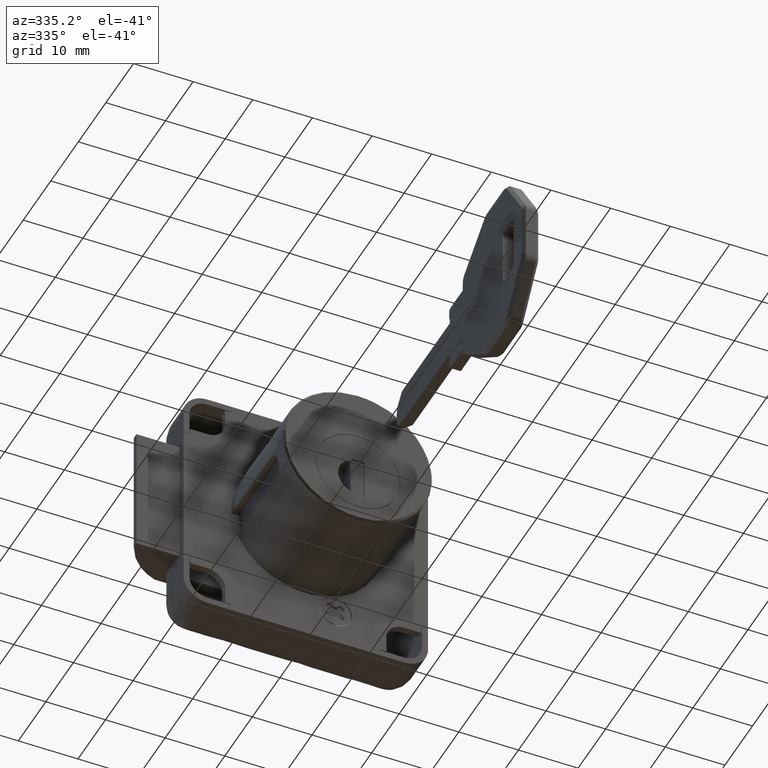
[diagram: clean part render]
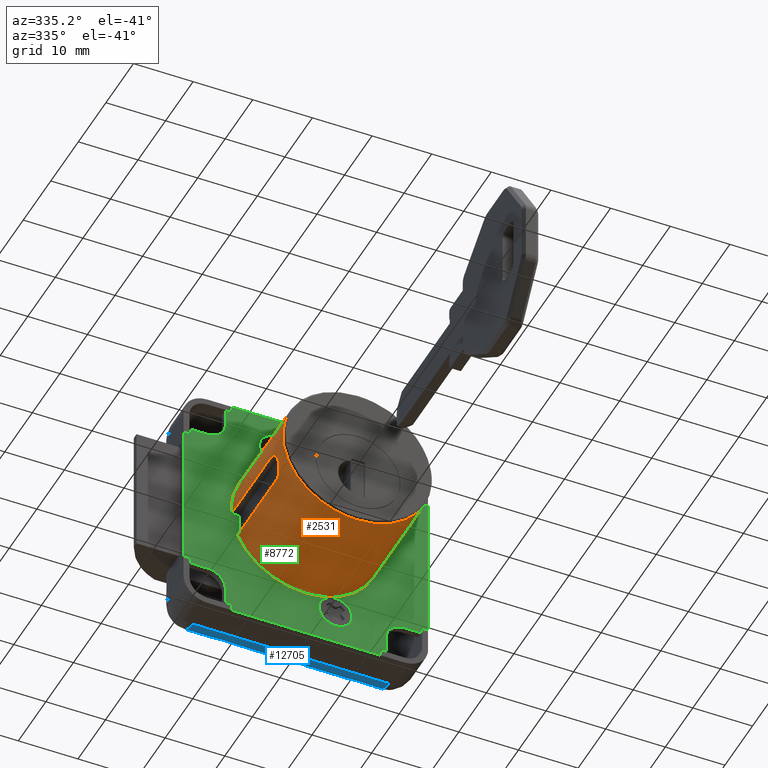
[diagram: same view with three faces highlighted in distinct colors, each labeled with its STEP entity id]
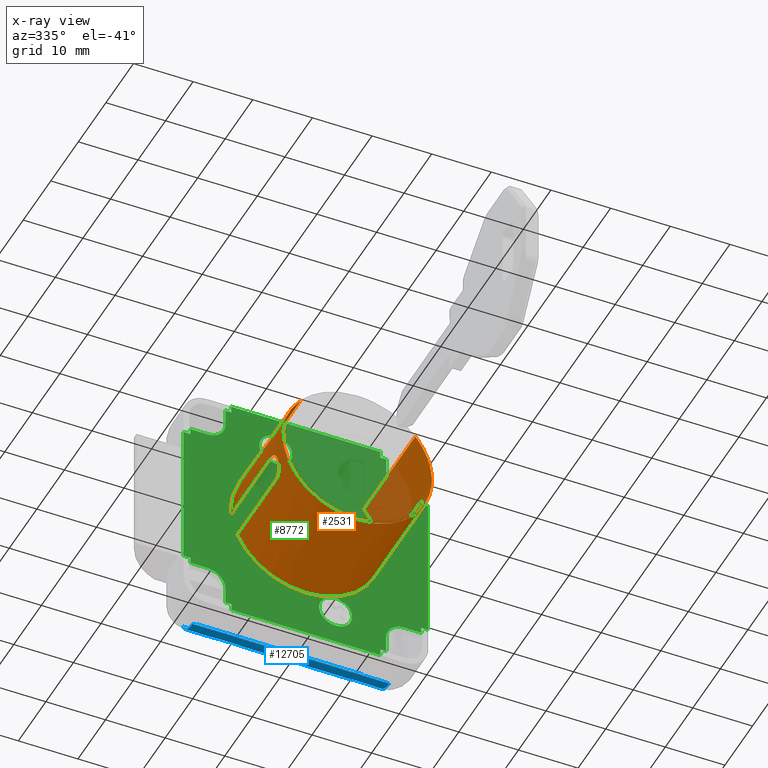
[diagram: x-ray of the same camera — body ghosted, the three highlighted faces saturated]
A machine part, auxiliary view with three faces highlighted in distinct colors.
The next image is the same camera in x-ray (body ghosted, the three faces saturated) — at least one of them is partly hidden behind the body in this view.
Their STEP definitions:

[orange] entity #2531 — the highlighted face is a freeform B-spline surface patch.
#2108=CARTESIAN_POINT('',(0.0,-28.099999999984600,-12.499999999645979));
#2109=VERTEX_POINT('',#2108);
#2110=CARTESIAN_POINT('',(12.344782854726070,-28.099999999983499,1.963755652912854));
#2111=VERTEX_POINT('',#2110);
#2112=CARTESIAN_POINT('',(0.0,-28.099999999984600,-12.499999999645979));
#2113=CARTESIAN_POINT('',(12.499999999767279,-28.099999999984604,-12.499999999645981));
#2114=CARTESIAN_POINT('',(12.499999999767279,-28.099999999984600,1.213026E-010));
#2115=CARTESIAN_POINT('',(12.499999999767279,-28.099999999984608,0.988012083113124));
#2116=CARTESIAN_POINT('',(12.344782854726061,-28.099999999983499,1.963755652912855));
#2124=(BOUNDED_CURVE()B_SPLINE_CURVE(2,(#2112,#2113,#2114,#2115,#2116),.UNSPECIFIED.,.F.,.U.)B_SPLINE_CURVE_WITH_KNOTS((3,2,3),(0.0,0.250000000000000,0.277059285077774),.UNSPECIFIED.)CURVE()GEOMETRIC_REPRESENTATION_ITEM()RATIONAL_B_SPLINE_CURVE((1.0,0.707106781186548,1.0,0.968298075579119,0.943458802441588))REPRESENTATION_ITEM(''));
#2125=EDGE_CURVE('',#2109,#2111,#2124,.T.);
#2168=CARTESIAN_POINT('',(-12.461466671444260,-28.099999999953919,0.980738696937787));
#2169=VERTEX_POINT('',#2168);
#2175=CARTESIAN_POINT('',(-12.461466671444251,-28.099999999953919,0.980738696937787));
#2176=CARTESIAN_POINT('',(-12.499999999767279,-28.099999999984608,0.491126337943388));
#2177=CARTESIAN_POINT('',(-12.499999999767279,-28.099999999984600,1.213026E-010));
#2178=CARTESIAN_POINT('',(-12.499999999767279,-28.099999999984604,-12.499999999645981));
#2179=CARTESIAN_POINT('',(0.0,-28.099999999984600,-12.499999999645979));
#2187=(BOUNDED_CURVE()B_SPLINE_CURVE(2,(#2175,#2176,#2177,#2178,#2179),.UNSPECIFIED.,.F.,.U.)B_SPLINE_CURVE_WITH_KNOTS((3,2,3),(0.736331300626321,0.750000000000000,1.0),.UNSPECIFIED.)CURVE()GEOMETRIC_REPRESENTATION_ITEM()RATIONAL_B_SPLINE_CURVE((0.969723356158364,0.983986122573799,1.0,0.707106781186548,1.0))REPRESENTATION_ITEM(''));
#2188=EDGE_CURVE('',#2169,#2109,#2187,.T.);
#2211=CARTESIAN_POINT('',(9.726475299554652,-28.099999999984430,7.851476182432934));
#2212=VERTEX_POINT('',#2211);
#2213=CARTESIAN_POINT('',(12.344782854726065,-28.099999999983506,1.963755652912854));
#2214=CARTESIAN_POINT('',(11.820932134881769,-28.099999999984597,5.256845287325196));
#2215=CARTESIAN_POINT('',(9.726475299554652,-28.099999999984433,7.851476182432934));
#2223=(BOUNDED_CURVE()B_SPLINE_CURVE(2,(#2213,#2214,#2215),.UNSPECIFIED.,.F.,.U.)B_SPLINE_CURVE_WITH_KNOTS((3,3),(0.277059285077774,0.358950614935817),.UNSPECIFIED.)CURVE()GEOMETRIC_REPRESENTATION_ITEM()RATIONAL_B_SPLINE_CURVE((0.943458802441588,0.868286043660523,0.855967606400061))REPRESENTATION_ITEM(''));
#2224=EDGE_CURVE('',#2111,#2212,#2223,.T.);
#2241=CARTESIAN_POINT('',(-9.428600477709409,-28.099999999984600,8.206795539551116));
#2242=VERTEX_POINT('',#2241);
#2256=CARTESIAN_POINT('',(-9.428600477709409,-28.099999999984597,8.206795539551116));
#2257=CARTESIAN_POINT('',(-12.137718300770288,-28.099999999984600,5.094351775355648));
#2258=CARTESIAN_POINT('',(-12.461466671444251,-28.099999999953912,0.980738696937787));
#2266=(BOUNDED_CURVE()B_SPLINE_CURVE(2,(#2256,#2257,#2258),.UNSPECIFIED.,.F.,.U.)B_SPLINE_CURVE_WITH_KNOTS((3,3),(0.635441241814190,0.736331300626322),.UNSPECIFIED.)CURVE()GEOMETRIC_REPRESENTATION_ITEM()RATIONAL_B_SPLINE_CURVE((0.854575185192875,0.864448428154027,0.969723356158365))REPRESENTATION_ITEM(''));
#2267=EDGE_CURVE('',#2242,#2169,#2266,.T.);
#2302=CARTESIAN_POINT('',(-9.428599161183696,-8.932499999953141,8.206797052082960));
#2303=CARTESIAN_POINT('',(-16.308605533094887,-8.932499999953139,0.302516990516824));
#2304=CARTESIAN_POINT('',(-9.726472665276287,-8.932499999953141,-7.851479445562399));
#2305=CARTESIAN_POINT('',(-1.874993219592585,-8.932499999953141,-17.577952110838684));
#2306=CARTESIAN_POINT('',(7.851479445683702,-8.932499999953141,-9.726472665154985));
#2307=CARTESIAN_POINT('',(17.577952110959991,-8.932499999953141,-1.874993219471282));
#2308=CARTESIAN_POINT('',(9.726472665276287,-8.932499999953141,7.851479445805005));
#2309=CARTESIAN_POINT('',(-9.428599161183696,-28.579187499985387,8.206797052082960));
#2310=CARTESIAN_POINT('',(-16.308605533094887,-28.579187499985395,0.302516990516824));
#2311=CARTESIAN_POINT('',(-9.726472665276287,-28.579187499985391,-7.851479445562399));
#2312=CARTESIAN_POINT('',(-1.874993219592585,-28.579187499985398,-17.577952110838684));
#2313=CARTESIAN_POINT('',(7.851479445683702,-28.579187499985391,-9.726472665154985));
#2314=CARTESIAN_POINT('',(17.577952110959991,-28.579187499985398,-1.874993219471282));
#2315=CARTESIAN_POINT('',(9.726472665276287,-28.579187499985391,7.851479445805005));
#2323=(BOUNDED_SURFACE()B_SPLINE_SURFACE(2,1,((#2302,#2309),(#2303,#2310),(#2304,#2311),(#2305,#2312),(#2306,#2313),(#2307,#2314),(#2308,#2315)),.UNSPECIFIED.,.F.,.F.,.U.)B_SPLINE_SURFACE_WITH_KNOTS((3,2,2,3),(2,2),(0.0,18.225396744087281,38.936074862368272,59.646752980649268),(0.0,19.646687500032250),.UNSPECIFIED.)GEOMETRIC_REPRESENTATION_ITEM()RATIONAL_B_SPLINE_SURFACE(((0.938140952186599,0.938140952186599),(0.742253967444162,0.742253967444162),(1.0,1.0),(0.707106781186548,0.707106781186548),(1.0,1.0),(0.707106781186548,0.707106781186548),(1.0,1.0)))REPRESENTATION_ITEM('')SURFACE());
#2324=CARTESIAN_POINT('',(-9.428591157330924,-9.399999999982178,8.206806247511146));
#2325=VERTEX_POINT('',#2324);
#2326=CARTESIAN_POINT('',(-12.459935794144840,-9.399999999953909,-0.999999999953703));
#2327=VERTEX_POINT('',#2326);
#2328=CARTESIAN_POINT('',(-9.428591157330924,-9.399999999982178,8.206806247511146));
#2329=CARTESIAN_POINT('',(-12.880558263106662,-9.399999999975087,4.240928956431436));
#2330=CARTESIAN_POINT('',(-12.459935794144840,-9.399999999953909,-0.999999999953703));
#2338=(BOUNDED_CURVE()B_SPLINE_CURVE(2,(#2328,#2329,#2330),.UNSPECIFIED.,.F.,.U.)B_SPLINE_CURVE_WITH_KNOTS((3,3),(0.760342992985671,1.0),.UNSPECIFIED.)CURVE()GEOMETRIC_REPRESENTATION_ITEM()RATIONAL_B_SPLINE_CURVE((0.940342553413063,0.893858905924321,1.0))REPRESENTATION_ITEM(''));
#2339=EDGE_CURVE('',#2325,#2327,#2338,.T.);
#2340=ORIENTED_EDGE('',*,*,#2339,.T.);
#2341=CARTESIAN_POINT('',(-12.459935794144799,-23.599999999954200,-0.999999999953702));
#2342=VERTEX_POINT('',#2341);
#2343=CARTESIAN_POINT('',(-12.459935794144840,-9.399999999953909,-0.999999999953703));
#2344=CARTESIAN_POINT('',(-12.459935794144799,-23.599999999954200,-0.999999999953702));
#2345=QUASI_UNIFORM_CURVE('',1,(#2343,#2344),.UNSPECIFIED.,.F.,.U.);
#2346=EDGE_CURVE('',#2327,#2342,#2345,.T.);
#2347=ORIENTED_EDGE('',*,*,#2346,.T.);
#2348=CARTESIAN_POINT('',(-11.456439237110700,-23.599999999954200,-4.999999999953820));
#2349=VERTEX_POINT('',#2348);
#2350=CARTESIAN_POINT('',(-11.456439237110700,-23.599999999954200,-4.999999999953820));
#2351=CARTESIAN_POINT('',(-11.456439237110700,-23.734545244391949,-4.999999999953820));
#2352=CARTESIAN_POINT('',(-11.462329476590270,-23.866528372847259,-4.986563581705420));
#2353=CARTESIAN_POINT('',(-11.479305907058921,-24.060874981707759,-4.947296153770268));
#2354=CARTESIAN_POINT('',(-11.486327867771941,-24.125048028746971,-4.930996357085839));
#2355=CARTESIAN_POINT('',(-11.498871454925210,-24.220381578754701,-4.901639368402551));
#2356=CARTESIAN_POINT('',(-11.503394363617669,-24.252029938218602,-4.891019227114862));
#2357=CARTESIAN_POINT('',(-11.512987521052430,-24.314280827662021,-4.868394941355347));
#2358=CARTESIAN_POINT('',(-11.518069163524300,-24.344977033663110,-4.856364225693496));
#2359=CARTESIAN_POINT('',(-11.544828124430961,-24.496371047464908,-4.792702333009005));
#2360=CARTESIAN_POINT('',(-11.570527478888449,-24.610869120113289,-4.730653181259075));
#2361=CARTESIAN_POINT('',(-11.614485999452590,-24.773049346939409,-4.621175324387066));
#2362=CARTESIAN_POINT('',(-11.630075621131629,-24.825542358114760,-4.581844898760416));
#2363=CARTESIAN_POINT('',(-11.662252250329241,-24.925232941495981,-4.499314845534527));
#2364=CARTESIAN_POINT('',(-11.695573139008729,-25.020210303782470,-4.412554741036844));
#2365=CARTESIAN_POINT('',(-11.730809281489790,-25.106081154678130,-4.317510826904235));
#2366=CARTESIAN_POINT('',(-11.766853533759329,-25.187416877883059,-4.218286862483641));
#2367=CARTESIAN_POINT('',(-11.785373238599570,-25.225988780999899,-4.166314137980368));
#2368=CARTESIAN_POINT('',(-11.841176234183790,-25.333248985095299,-4.006161365787226));
#2369=CARTESIAN_POINT('',(-11.878606908069600,-25.393556252265331,-3.894079857537604));
#2370=CARTESIAN_POINT('',(-11.934408239208951,-25.467752567127452,-3.718022320849586));
#2371=CARTESIAN_POINT('',(-11.952954032621109,-25.489753386008040,-3.658004965025484));
#2372=CARTESIAN_POINT('',(-11.989848098613541,-25.528133097105538,-3.535201974754415));
#2373=CARTESIAN_POINT('',(-12.008148058901689,-25.544428717240208,-3.472554540869362));
#2374=CARTESIAN_POINT('',(-12.061528502550230,-25.583840591001572,-3.284288290775793));
#2375=CARTESIAN_POINT('',(-12.095464585699689,-25.597980951437648,-3.157116105524464));
#2376=CARTESIAN_POINT('',(-12.143735982617040,-25.600710529151439,-2.963796179168606));
#2377=CARTESIAN_POINT('',(-12.159420742942499,-25.598507237653081,-2.898786464412817));
#2378=CARTESIAN_POINT('',(-12.189752449105841,-25.587628725785990,-2.768467265421985));
#2379=CARTESIAN_POINT('',(-12.204211981976981,-25.579035140635721,-2.703973985530538));
#2380=CARTESIAN_POINT('',(-12.245594672233240,-25.544004658268960,-2.512463493094176));
#2381=CARTESIAN_POINT('',(-12.270526084290591,-25.508403528597359,-2.387394496600775));
#2382=CARTESIAN_POINT('',(-12.304325903112870,-25.435930043743380,-2.203957754195872));
#2383=CARTESIAN_POINT('',(-12.315032877878890,-25.408405159196469,-2.143246743099541));
#2384=CARTESIAN_POINT('',(-12.334881187262051,-25.347991228798008,-2.025894242353777));
#2385=CARTESIAN_POINT('',(-12.344076417580879,-25.315027544719381,-1.968982825686954));
#2386=CARTESIAN_POINT('',(-12.369715912243390,-25.207991911771579,-1.803494428184105));
#2387=CARTESIAN_POINT('',(-12.384241159692390,-25.125722087781998,-1.699972245516925));
#2388=CARTESIAN_POINT('',(-12.409039202544870,-24.938970441734281,-1.508337099821523));
#2389=CARTESIAN_POINT('',(-12.418937508615890,-24.837486963498080,-1.423247238268289));
#2390=CARTESIAN_POINT('',(-12.431092529232179,-24.673530921558498,-1.311239456103555));
#2391=CARTESIAN_POINT('',(-12.434689935573770,-24.616909336337709,-1.276527006330660));
#2392=CARTESIAN_POINT('',(-12.441095980427351,-24.499623022986562,-1.212503937132298));
#2393=CARTESIAN_POINT('',(-12.443898486674460,-24.438945336525880,-1.183243933696486));
#2394=CARTESIAN_POINT('',(-12.451119128201141,-24.254941958643169,-1.105592821203326));
#2395=CARTESIAN_POINT('',(-12.454452333072229,-24.128337638979239,-1.066453864890893));
#2396=CARTESIAN_POINT('',(-12.457217081640170,-23.965168628276849,-1.033337673773837));
#2397=CARTESIAN_POINT('',(-12.457698188221070,-23.932286845515531,-1.027512111779888));
#2398=CARTESIAN_POINT('',(-12.458520992617959,-23.866017956038590,-1.017487083535205));
#2399=CARTESIAN_POINT('',(-12.458862382122909,-23.832610235728101,-1.013291332181553));
#2400=CARTESIAN_POINT('',(-12.459673082325800,-23.732762097021599,-1.003290297684802));
#2401=CARTESIAN_POINT('',(-12.459935794144780,-23.666320659142421,-0.999999999953820));
#2402=CARTESIAN_POINT('',(-12.459935794144799,-23.599999999954200,-0.999999999953702));
#2403=B_SPLINE_CURVE_WITH_KNOTS('',3,(#2350,#2351,#2352,#2353,#2354,#2355,#2356,#2357,#2358,#2359,#2360,#2361,#2362,#2363,#2364,#2365,#2366,#2367,#2368,#2369,#2370,#2371,#2372,#2373,#2374,#2375,#2376,#2377,#2378,#2379,#2380,#2381,#2382,#2383,#2384,#2385,#2386,#2387,#2388,#2389,#2390,#2391,#2392,#2393,#2394,#2395,#2396,#2397,#2398,#2399,#2400,#2401,#2402),.UNSPECIFIED.,.F.,.U.,(4,2,2,2,2,2,2,1,2,2,2,2,2,2,2,2,2,2,2,2,2,2,2,2,2,2,4),(0.0,0.062500000000007,0.093750000000009,0.109375000000010,0.125000000000010,0.187500000000011,0.218750000000010,0.250000000000010,0.281250000000010,0.312500000000009,0.375000000000009,0.406250000000008,0.437500000000008,0.500000000000007,0.531250000000007,0.562500000000007,0.625000000000006,0.656250000000005,0.687500000000005,0.750000000000003,0.812500000000002,0.843750000000002,0.875000000000001,0.937500000000000,0.953124999999999,0.968749999999999,1.0),.UNSPECIFIED.);
#2404=EDGE_CURVE('',#2349,#2342,#2403,.T.);
#2405=ORIENTED_EDGE('',*,*,#2404,.F.);
#2406=CARTESIAN_POINT('',(-11.456439237110700,-9.399999999984200,-4.999999999953820));
#2407=VERTEX_POINT('',#2406);
#2408=CARTESIAN_POINT('',(-11.456439237110700,-23.599999999954200,-4.999999999953820));
#2409=CARTESIAN_POINT('',(-11.456439237110700,-9.399999999984200,-4.999999999953820));
#2410=QUASI_UNIFORM_CURVE('',1,(#2408,#2409),.UNSPECIFIED.,.F.,.U.);
#2411=EDGE_CURVE('',#2349,#2407,#2410,.T.);
#2412=ORIENTED_EDGE('',*,*,#2411,.T.);
#2413=CARTESIAN_POINT('',(11.456439237118479,-9.399999999984200,-4.999999999953820));
#2414=VERTEX_POINT('',#2413);
#2415=CARTESIAN_POINT('',(-11.456439237110700,-9.399999999984200,-4.999999999953820));
#2416=CARTESIAN_POINT('',(-8.183170883577406,-9.399999999984798,-12.499999999661277));
#2417=CARTESIAN_POINT('',(1.551251E-012,-9.399999999984798,-12.499999999660259));
#2418=CARTESIAN_POINT('',(8.183170883580509,-9.399999999984798,-12.499999999659245));
#2419=CARTESIAN_POINT('',(11.456439237118479,-9.399999999984200,-4.999999999953820));
#2427=(BOUNDED_CURVE()B_SPLINE_CURVE(2,(#2415,#2416,#2417,#2418,#2419),.UNSPECIFIED.,.F.,.U.)B_SPLINE_CURVE_WITH_KNOTS((3,2,3),(0.0,0.500000000000000,1.0),.UNSPECIFIED.)CURVE()GEOMETRIC_REPRESENTATION_ITEM()RATIONAL_B_SPLINE_CURVE((1.0,0.836660026537994,1.0,0.836660026537994,1.0))REPRESENTATION_ITEM(''));
#2428=EDGE_CURVE('',#2407,#2414,#2427,.T.);
#2429=ORIENTED_EDGE('',*,*,#2428,.T.);
#2430=CARTESIAN_POINT('',(11.456439237110700,-23.599999999954200,-4.999999999953820));
#2431=VERTEX_POINT('',#2430);
#2432=CARTESIAN_POINT('',(11.456439237118479,-9.399999999984200,-4.999999999953820));
#2433=CARTESIAN_POINT('',(11.456439237110700,-23.599999999954200,-4.999999999953820));
#2434=QUASI_UNIFORM_CURVE('',1,(#2432,#2433),.UNSPECIFIED.,.F.,.U.);
#2435=EDGE_CURVE('',#2414,#2431,#2434,.T.);
#2436=ORIENTED_EDGE('',*,*,#2435,.T.);
#2437=CARTESIAN_POINT('',(12.459935794144840,-23.599999999954200,-0.999999999953704));
#2438=VERTEX_POINT('',#2437);
#2439=CARTESIAN_POINT('',(12.459935794144840,-23.599999999954200,-0.999999999953704));
#2440=CARTESIAN_POINT('',(12.459935794144799,-23.734442768633311,-0.999999999953817));
#2441=CARTESIAN_POINT('',(12.458879518205840,-23.866594623136621,-1.013418484999364));
#2442=CARTESIAN_POINT('',(12.455588278730319,-24.061523892303448,-1.052850699320214));
#2443=CARTESIAN_POINT('',(12.454201051754239,-24.125946294289282,-1.069236875358789));
#2444=CARTESIAN_POINT('',(12.450754362731670,-24.253655004963829,-1.108651041605142));
#2445=CARTESIAN_POINT('',(12.448687436075749,-24.316991307488681,-1.131750168700930));
#2446=CARTESIAN_POINT('',(12.441456503158150,-24.501007631463999,-1.209491380542318));
#2447=CARTESIAN_POINT('',(12.435249216571471,-24.617227858316049,-1.272890575991650));
#2448=CARTESIAN_POINT('',(12.425097423823280,-24.754454479854338,-1.366495004178198));
#2449=CARTESIAN_POINT('',(12.422945794152120,-24.781493660434879,-1.385940225051000));
#2450=CARTESIAN_POINT('',(12.418376340235721,-24.834745096505110,-1.426303468452638));
#2451=CARTESIAN_POINT('',(12.415953344481830,-24.861000034572690,-1.447262875538585));
#2452=CARTESIAN_POINT('',(12.408333500011301,-24.937651468774710,-1.511664282670016));
#2453=CARTESIAN_POINT('',(12.402765696105080,-24.986211578931812,-1.556816422484716));
#2454=CARTESIAN_POINT('',(12.384405854606200,-25.124489838780839,-1.698702089717010));
#2455=CARTESIAN_POINT('',(12.369975392481461,-25.206875525817662,-1.801804734974314));
#2456=CARTESIAN_POINT('',(12.344004495586020,-25.315344312620589,-1.969454464248248));
#2457=CARTESIAN_POINT('',(12.334716159562049,-25.348537259786191,-2.026892316082919));
#2458=CARTESIAN_POINT('',(12.314933971091261,-25.408661899870509,-2.143808873381929));
#2459=CARTESIAN_POINT('',(12.293900599219830,-25.462717542494641,-2.263063437316041));
#2460=CARTESIAN_POINT('',(12.270165448825191,-25.504830344677622,-2.386875330164204));
#2461=CARTESIAN_POINT('',(12.244962151974301,-25.540903321724340,-2.512973513584323));
#2462=CARTESIAN_POINT('',(12.231576129714080,-25.555925493511779,-2.577374297968364));
#2463=CARTESIAN_POINT('',(12.189941300430480,-25.591005205560350,-2.769942718917489));
#2464=CARTESIAN_POINT('',(12.159986915325121,-25.601599442044410,-2.898692289286517));
#2465=CARTESIAN_POINT('',(12.111650398507720,-25.598911130688631,-3.092304854268997));
#2466=CARTESIAN_POINT('',(12.094905743588861,-25.594867591082959,-3.157165873020960));
#2467=CARTESIAN_POINT('',(12.060554610468211,-25.580512744210012,-3.285949449390511));
#2468=CARTESIAN_POINT('',(12.043072283741830,-25.570277813383971,-3.349424401972036));
#2469=CARTESIAN_POINT('',(11.989788951157349,-25.530742699531292,-3.537215903764102));
#2470=CARTESIAN_POINT('',(11.953145815947780,-25.492695650957071,-3.658919974741028));
#2471=CARTESIAN_POINT('',(11.896915301341210,-25.417885626534840,-3.836307323128874));
#2472=CARTESIAN_POINT('',(11.877954587089731,-25.389922607874428,-3.894574213309752));
#2473=CARTESIAN_POINT('',(11.840485332106240,-25.329145333053152,-4.007046365603117));
#2474=CARTESIAN_POINT('',(11.821880021214270,-25.296211961108590,-4.061561681962242));
#2475=CARTESIAN_POINT('',(11.766630718845040,-25.189855807962200,-4.220062046421225));
#2476=CARTESIAN_POINT('',(11.730508564007801,-25.108890793882050,-4.319123531723926));
#2477=CARTESIAN_POINT('',(11.661144097983220,-24.925785161881119,-4.503040925705437));
#2478=CARTESIAN_POINT('',(11.628997956482291,-24.826521143434562,-4.585026694799252));
#2479=CARTESIAN_POINT('',(11.585480075267030,-24.666069096743840,-4.693417436844200));
#2480=CARTESIAN_POINT('',(11.571762112393850,-24.610644988419299,-4.727098067465566));
#2481=CARTESIAN_POINT('',(11.546118737847310,-24.495738224124729,-4.789392092613297));
#2482=CARTESIAN_POINT('',(11.534130649722981,-24.435864584799390,-4.818153057411656));
#2483=CARTESIAN_POINT('',(11.501899311135530,-24.253459724479960,-4.894832701431573));
#2484=CARTESIAN_POINT('',(11.485237488786201,-24.127964075622451,-4.933572957109831));
#2485=CARTESIAN_POINT('',(11.468169991141080,-23.933787302785241,-4.973055662607337));
#2486=CARTESIAN_POINT('',(11.463807075359080,-23.868066174529481,-4.983089564055748));
#2487=CARTESIAN_POINT('',(11.457925521500670,-23.734528613255328,-4.996598543829045));
#2488=CARTESIAN_POINT('',(11.456439237110761,-23.667291287702898,-4.999999999953820));
#2489=CARTESIAN_POINT('',(11.456439237110761,-23.599999999954200,-4.999999999953820));
#2490=B_SPLINE_CURVE_WITH_KNOTS('',3,(#2439,#2440,#2441,#2442,#2443,#2444,#2445,#2446,#2447,#2448,#2449,#2450,#2451,#2452,#2453,#2454,#2455,#2456,#2457,#2458,#2459,#2460,#2461,#2462,#2463,#2464,#2465,#2466,#2467,#2468,#2469,#2470,#2471,#2472,#2473,#2474,#2475,#2476,#2477,#2478,#2479,#2480,#2481,#2482,#2483,#2484,#2485,#2486,#2487,#2488,#2489),.UNSPECIFIED.,.F.,.U.,(4,2,2,2,2,2,2,2,2,2,1,2,2,2,2,2,2,2,2,2,2,2,2,2,2,4),(0.0,0.062500000000001,0.093750000000003,0.125000000000004,0.187500000000007,0.203125000000007,0.218750000000007,0.250000000000006,0.312500000000005,0.343750000000005,0.375000000000005,0.406250000000005,0.437500000000005,0.500000000000004,0.531250000000003,0.562500000000003,0.625000000000002,0.656250000000002,0.687500000000002,0.750000000000001,0.812500000000001,0.843750000000000,0.874999999999999,0.937499999999999,0.968749999999999,1.0),.UNSPECIFIED.);
#2491=EDGE_CURVE('',#2438,#2431,#2490,.T.);
#2492=ORIENTED_EDGE('',*,*,#2491,.F.);
#2493=CARTESIAN_POINT('',(12.459935794151940,-9.399999999953909,-0.999999999953703));
#2494=VERTEX_POINT('',#2493);
#2495=CARTESIAN_POINT('',(12.459935794144840,-23.599999999954200,-0.999999999953704));
#2496=CARTESIAN_POINT('',(12.459935794151940,-9.399999999953909,-0.999999999953703));
#2497=QUASI_UNIFORM_CURVE('',1,(#2495,#2496),.UNSPECIFIED.,.F.,.U.);
#2498=EDGE_CURVE('',#2438,#2494,#2497,.T.);
#2499=ORIENTED_EDGE('',*,*,#2498,.T.);
#2500=CARTESIAN_POINT('',(9.726465911386004,-9.399999999981539,7.851487812566796));
#2501=VERTEX_POINT('',#2500);
#2502=CARTESIAN_POINT('',(12.459935794151940,-9.399999999953909,-0.999999999953703));
#2503=CARTESIAN_POINT('',(12.858895838717334,-9.399999999973996,3.971016539390172));
#2504=CARTESIAN_POINT('',(9.726465911386004,-9.399999999981539,7.851487812566796));
#2512=(BOUNDED_CURVE()B_SPLINE_CURVE(2,(#2502,#2503,#2504),.UNSPECIFIED.,.F.,.U.)B_SPLINE_CURVE_WITH_KNOTS((3,3),(0.0,0.228563874105427),.UNSPECIFIED.)CURVE()GEOMETRIC_REPRESENTATION_ITEM()RATIONAL_B_SPLINE_CURVE((1.0,0.898771915889464,0.936366330214373))REPRESENTATION_ITEM(''));
#2513=EDGE_CURVE('',#2494,#2501,#2512,.T.);
#2514=ORIENTED_EDGE('',*,*,#2513,.T.);
#2515=CARTESIAN_POINT('',(9.726465911386004,-9.399999999981539,7.851487812566796));
#2516=CARTESIAN_POINT('',(9.726475299554652,-28.099999999984430,7.851476182432934));
#2517=QUASI_UNIFORM_CURVE('',1,(#2515,#2516),.UNSPECIFIED.,.F.,.U.);
#2518=EDGE_CURVE('',#2501,#2212,#2517,.T.);
#2519=ORIENTED_EDGE('',*,*,#2518,.T.);
#2520=ORIENTED_EDGE('',*,*,#2224,.F.);
#2521=ORIENTED_EDGE('',*,*,#2125,.F.);
#2522=ORIENTED_EDGE('',*,*,#2188,.F.);
#2523=ORIENTED_EDGE('',*,*,#2267,.F.);
#2524=CARTESIAN_POINT('',(-9.428591157330924,-9.399999999982178,8.206806247511146));
#2525=CARTESIAN_POINT('',(-9.428600477709409,-28.099999999984600,8.206795539551116));
#2526=QUASI_UNIFORM_CURVE('',1,(#2524,#2525),.UNSPECIFIED.,.F.,.U.);
#2527=EDGE_CURVE('',#2325,#2242,#2526,.T.);
#2528=ORIENTED_EDGE('',*,*,#2527,.F.);
#2529=EDGE_LOOP('',(#2340,#2347,#2405,#2412,#2429,#2436,#2492,#2499,#2514,#2519,#2520,#2521,#2522,#2523,#2528));
#2530=FACE_OUTER_BOUND('',#2529,.T.);
#2531=ADVANCED_FACE('',(#2530),#2323,.T.);

[blue] entity #12705 — the highlighted face is a freeform B-spline surface patch.
#9281=CARTESIAN_POINT('',(-13.806258903199980,2.220446E-013,-16.500000000233101));
#9282=VERTEX_POINT('',#9281);
#9296=CARTESIAN_POINT('',(-16.500000000112600,-0.376294562515984,-18.193741096844050));
#9297=VERTEX_POINT('',#9296);
#9298=CARTESIAN_POINT('',(-16.500000000112600,-0.376294562515989,-18.193741096844050));
#9299=CARTESIAN_POINT('',(-16.354473944433661,-0.391797697530421,-18.226909563242039));
#9300=CARTESIAN_POINT('',(-16.207697276658351,-0.400831769386546,-18.245281386472360));
#9301=CARTESIAN_POINT('',(-15.985660588644221,-0.403696221031376,-18.251172149602951));
#9302=CARTESIAN_POINT('',(-15.911334775805420,-0.402877012254623,-18.249497829024730));
#9303=CARTESIAN_POINT('',(-15.799361099607619,-0.398928854024642,-18.241348819999761));
#9304=CARTESIAN_POINT('',(-15.762036139949039,-0.397159913294990,-18.237690648307559));
#9305=CARTESIAN_POINT('',(-15.688129695561150,-0.392785767357515,-18.228592190020930));
#9306=CARTESIAN_POINT('',(-15.651440704580750,-0.390177240043913,-18.223145006554791));
#9307=CARTESIAN_POINT('',(-15.469282044653241,-0.375144186759028,-18.191509820171088));
#9308=CARTESIAN_POINT('',(-15.327639594253069,-0.356732978012392,-18.152261733898239));
#9309=CARTESIAN_POINT('',(-15.155460537512139,-0.327751697349311,-18.085812920490849));
#9310=CARTESIAN_POINT('',(-15.121215751330229,-0.321646395053021,-18.071616186332690));
#9311=CARTESIAN_POINT('',(-15.053910962314051,-0.309031483717931,-18.041756819984911));
#9312=CARTESIAN_POINT('',(-15.020769930405759,-0.302509381393019,-18.026066253897170));
#9313=CARTESIAN_POINT('',(-14.922830679165539,-0.282411728566085,-17.976752445679729));
#9314=CARTESIAN_POINT('',(-14.859512270184039,-0.268305528947641,-17.940893468906101));
#9315=CARTESIAN_POINT('',(-14.736660505626100,-0.239251583113553,-17.863264082585939));
#9316=CARTESIAN_POINT('',(-14.677127317509729,-0.224302833915068,-17.821493772675350));
#9317=CARTESIAN_POINT('',(-14.561810576537470,-0.194125333852886,-17.731889973471390));
#9318=CARTESIAN_POINT('',(-14.505927619197950,-0.178863663954138,-17.683911913019291));
#9319=CARTESIAN_POINT('',(-14.347163856929440,-0.134430715630880,-17.533583751696970));
#9320=CARTESIAN_POINT('',(-14.251909560429340,-0.106309329569262,-17.424101803795018));
#9321=CARTESIAN_POINT('',(-14.124683606899760,-0.069596919341448,-17.245405539947029));
#9322=CARTESIAN_POINT('',(-14.084807768475160,-0.058244414282804,-17.183236562415932));
#9323=CARTESIAN_POINT('',(-14.010984876653030,-0.038074536170048,-17.054432968671971));
#9324=CARTESIAN_POINT('',(-13.977464307159741,-0.029374239691855,-16.988579616912070));
#9325=CARTESIAN_POINT('',(-13.886860795070969,-0.007993430102344,-16.786704424546951));
#9326=CARTESIAN_POINT('',(-13.839629357424780,-3.481305E-015,-16.646412273874841));
#9327=CARTESIAN_POINT('',(-13.806258903199980,2.220446E-013,-16.500000000233101));
#9328=B_SPLINE_CURVE_WITH_KNOTS('',3,(#9298,#9299,#9300,#9301,#9302,#9303,#9304,#9305,#9306,#9307,#9308,#9309,#9310,#9311,#9312,#9313,#9314,#9315,#9316,#9317,#9318,#9319,#9320,#9321,#9322,#9323,#9324,#9325,#9326,#9327),.UNSPECIFIED.,.F.,.U.,(4,2,2,2,2,2,2,2,2,2,2,2,2,2,4),(0.0,0.125000000000004,0.187500000000008,0.218750000000008,0.250000000000008,0.375000000000006,0.406250000000006,0.437500000000006,0.500000000000006,0.562500000000006,0.625000000000007,0.750000000000007,0.812500000000006,0.875000000000005,1.0),.UNSPECIFIED.);
#9329=EDGE_CURVE('',#9297,#9282,#9328,.T.);
#9677=CARTESIAN_POINT('',(16.499999999887301,-0.376294562506960,-18.193741096824699));
#9678=VERTEX_POINT('',#9677);
#9704=CARTESIAN_POINT('',(13.806258903216261,2.220446E-013,-16.500000000233101));
#9705=VERTEX_POINT('',#9704);
#9706=CARTESIAN_POINT('',(13.806258903216261,2.220446E-013,-16.500000000233101));
#9707=CARTESIAN_POINT('',(13.839631603773080,-3.469447E-015,-16.646422129594779));
#9708=CARTESIAN_POINT('',(13.886836266288110,-0.007992686261267,-16.786593122214668));
#9709=CARTESIAN_POINT('',(13.977259216724400,-0.029323328827837,-16.988150874079309));
#9710=CARTESIAN_POINT('',(14.010696347413390,-0.037999047368580,-17.053875458903999));
#9711=CARTESIAN_POINT('',(14.065890152265780,-0.053074102155159,-17.150256372761849));
#9712=CARTESIAN_POINT('',(14.085170240857920,-0.058454764799698,-17.182070582813669));
#9713=CARTESIAN_POINT('',(14.124995315662559,-0.069726061587314,-17.244275412823100));
#9714=CARTESIAN_POINT('',(14.145582010429100,-0.075627695372820,-17.274745814465469));
#9715=CARTESIAN_POINT('',(14.251824781723331,-0.106283603113297,-17.424033339751968));
#9716=CARTESIAN_POINT('',(14.347295216173579,-0.134471081595133,-17.533755095947509));
#9717=CARTESIAN_POINT('',(14.506435177219110,-0.179003902251554,-17.684368893452650));
#9718=CARTESIAN_POINT('',(14.562357887670020,-0.194271853546681,-17.732338695823518));
#9719=CARTESIAN_POINT('',(14.677486392135391,-0.224393482301114,-17.821749147713899));
#9720=CARTESIAN_POINT('',(14.736918233673141,-0.239313937871187,-17.863433649385279));
#9721=CARTESIAN_POINT('',(14.859552423171790,-0.268313618385637,-17.940912115111800));
#9722=CARTESIAN_POINT('',(14.922754606508001,-0.282393836217159,-17.976705979757909));
#9723=CARTESIAN_POINT('',(15.053091478558200,-0.309144208948879,-18.042348750880929));
#9724=CARTESIAN_POINT('',(15.120440899087150,-0.321851131468552,-18.072280473934129));
#9725=CARTESIAN_POINT('',(15.327432295317781,-0.356710104518840,-18.152216295312559));
#9726=CARTESIAN_POINT('',(15.468849932925940,-0.375070750727581,-18.191351401123729));
#9727=CARTESIAN_POINT('',(15.686239658249670,-0.393067749530017,-18.229229639812790));
#9728=CARTESIAN_POINT('',(15.759585310312550,-0.397480287751509,-18.238358151522981));
#9729=CARTESIAN_POINT('',(15.908127497205610,-0.402808285646009,-18.249356770442638));
#9730=CARTESIAN_POINT('',(15.983520561456750,-0.403697265198638,-18.251174238259459));
#9731=CARTESIAN_POINT('',(16.207082470933170,-0.400891965609616,-18.245405295817619));
#9732=CARTESIAN_POINT('',(16.354392567622821,-0.391806366698098,-18.226928110652182));
#9733=CARTESIAN_POINT('',(16.499999999887301,-0.376294562506964,-18.193741096824699));
#9734=B_SPLINE_CURVE_WITH_KNOTS('',3,(#9706,#9707,#9708,#9709,#9710,#9711,#9712,#9713,#9714,#9715,#9716,#9717,#9718,#9719,#9720,#9721,#9722,#9723,#9724,#9725,#9726,#9727,#9728,#9729,#9730,#9731,#9732,#9733),.UNSPECIFIED.,.F.,.U.,(4,2,2,2,2,2,2,2,2,2,2,2,2,4),(0.0,0.125000000000002,0.187500000000004,0.218750000000003,0.250000000000002,0.375000000000001,0.437500000000002,0.500000000000002,0.562500000000003,0.625000000000003,0.750000000000003,0.812500000000002,0.875000000000000,1.0),.UNSPECIFIED.);
#9735=EDGE_CURVE('',#9705,#9678,#9734,.T.);
#10790=CARTESIAN_POINT('',(5.000000000067760,0.0,-16.500000000233101));
#10791=VERTEX_POINT('',#10790);
#10921=CARTESIAN_POINT('',(13.806258903216261,2.220446E-013,-16.500000000233101));
#10922=CARTESIAN_POINT('',(5.000000000067760,0.0,-16.500000000233101));
#10923=QUASI_UNIFORM_CURVE('',1,(#10921,#10922),.UNSPECIFIED.,.F.,.U.);
#10924=EDGE_CURVE('',#9705,#10791,#10923,.T.);
#10930=CARTESIAN_POINT('',(5.000000000067760,0.0,-16.500000000233101));
#10931=CARTESIAN_POINT('',(-13.806258903199980,2.220446E-013,-16.500000000233101));
#10932=QUASI_UNIFORM_CURVE('',1,(#10930,#10931),.UNSPECIFIED.,.F.,.U.);
#10933=EDGE_CURVE('',#10791,#9282,#10932,.T.);
#11856=CARTESIAN_POINT('',(-16.500000000112600,-4.0,-20.500000000233101));
#11857=VERTEX_POINT('',#11856);
#11912=CARTESIAN_POINT('',(16.499999999887301,-4.0,-20.500000000233101));
#11913=VERTEX_POINT('',#11912);
#12178=CARTESIAN_POINT('',(-16.500000000112600,-4.0,-20.500000000233101));
#12179=CARTESIAN_POINT('',(16.499999999887301,-4.0,-20.500000000233101));
#12180=QUASI_UNIFORM_CURVE('',1,(#12178,#12179),.UNSPECIFIED.,.F.,.U.);
#12181=EDGE_CURVE('',#11857,#11913,#12180,.T.);
#12471=CARTESIAN_POINT('',(16.499999999887301,-4.0,-20.500000000233101));
#12472=CARTESIAN_POINT('',(16.499999999887301,-1.454253450574156,-20.500000000233101));
#12473=CARTESIAN_POINT('',(16.499999999887301,-0.376294562506952,-18.193741096824699));
#12481=(BOUNDED_CURVE()B_SPLINE_CURVE(2,(#12471,#12472,#12473),.UNSPECIFIED.,.F.,.U.)CURVE()GEOMETRIC_REPRESENTATION_ITEM()QUASI_UNIFORM_CURVE()RATIONAL_B_SPLINE_CURVE((1.0,0.843633591717370,1.0))REPRESENTATION_ITEM(''));
#12482=EDGE_CURVE('',#11913,#9678,#12481,.T.);
#12641=CARTESIAN_POINT('',(-16.500000000112600,-0.376294562515993,-18.193741096844050));
#12642=CARTESIAN_POINT('',(-16.500000000112607,-1.454253450589156,-20.500000000233108));
#12643=CARTESIAN_POINT('',(-16.500000000112600,-4.0,-20.500000000233101));
#12651=(BOUNDED_CURVE()B_SPLINE_CURVE(2,(#12641,#12642,#12643),.UNSPECIFIED.,.F.,.U.)CURVE()GEOMETRIC_REPRESENTATION_ITEM()QUASI_UNIFORM_CURVE()RATIONAL_B_SPLINE_CURVE((1.0,0.843633591718803,1.0))REPRESENTATION_ITEM(''));
#12652=EDGE_CURVE('',#9297,#11857,#12651,.T.);
#12682=CARTESIAN_POINT('',(17.324999999887300,-4.104707793231494,-20.498629300135331));
#12683=CARTESIAN_POINT('',(-17.345625000112602,-4.104707793231494,-20.498629300135331));
#12684=CARTESIAN_POINT('',(17.324999999887307,0.299939202218880,-20.613969040898144));
#12685=CARTESIAN_POINT('',(-17.345625000112605,0.299939202218880,-20.613969040898144));
#12686=CARTESIAN_POINT('',(17.324999999887304,-0.009902082476762,-16.218719697729167));
#12687=CARTESIAN_POINT('',(-17.345625000112602,-0.009902082476762,-16.218719697729167));
#12695=(BOUNDED_SURFACE()B_SPLINE_SURFACE(1,2,((#12682,#12684,#12686),(#12683,#12685,#12687)),.UNSPECIFIED.,.F.,.F.,.U.)B_SPLINE_SURFACE_WITH_KNOTS((2,2),(3,3),(0.0,34.670624999999923),(0.0,7.084569376353453),.UNSPECIFIED.)GEOMETRIC_REPRESENTATION_ITEM()RATIONAL_B_SPLINE_SURFACE(((1.0,0.670944223154768,0.996392648609106),(1.0,0.670944223154768,0.996392648609106)))REPRESENTATION_ITEM('')SURFACE());
#12696=ORIENTED_EDGE('',*,*,#12652,.F.);
#12697=ORIENTED_EDGE('',*,*,#9329,.T.);
#12698=ORIENTED_EDGE('',*,*,#10933,.F.);
#12699=ORIENTED_EDGE('',*,*,#10924,.F.);
#12700=ORIENTED_EDGE('',*,*,#9735,.T.);
#12701=ORIENTED_EDGE('',*,*,#12482,.F.);
#12702=ORIENTED_EDGE('',*,*,#12181,.F.);
#12703=EDGE_LOOP('',(#12696,#12697,#12698,#12699,#12700,#12701,#12702));
#12704=FACE_OUTER_BOUND('',#12703,.T.);
#12705=ADVANCED_FACE('',(#12704),#12695,.T.);

[green] entity #8772 — the highlighted face is a freeform B-spline surface patch.
#6968=CARTESIAN_POINT('',(7.730776212247591,-9.400000000000292,-14.824594147197111));
#6969=VERTEX_POINT('',#6968);
#6975=CARTESIAN_POINT('',(4.999999999994320,-9.399999999984209,-11.749999985152330));
#6976=VERTEX_POINT('',#6975);
#6977=CARTESIAN_POINT('',(7.730776212247591,-9.400000000000292,-14.824594147197113));
#6978=CARTESIAN_POINT('',(7.750000014850495,-9.399999999984210,-14.662866330059526));
#6979=CARTESIAN_POINT('',(7.750000014850494,-9.399999999984209,-14.500000000008500));
#6980=CARTESIAN_POINT('',(7.750000014850494,-9.399999999984209,-11.749999985152328));
#6981=CARTESIAN_POINT('',(4.999999999994320,-9.399999999984209,-11.749999985152330));
#6989=(BOUNDED_CURVE()B_SPLINE_CURVE(2,(#6977,#6978,#6979,#6980,#6981),.UNSPECIFIED.,.F.,.U.)B_SPLINE_CURVE_WITH_KNOTS((3,2,3),(0.229562473499914,0.250000000000000,0.500000000000000),.UNSPECIFIED.)CURVE()GEOMETRIC_REPRESENTATION_ITEM()RATIONAL_B_SPLINE_CURVE((0.956026754157054,0.976055948315219,1.0,0.707106781186548,1.0))REPRESENTATION_ITEM(''));
#6990=EDGE_CURVE('',#6969,#6976,#6989,.T.);
#6992=CARTESIAN_POINT('',(2.255129289402676,-9.400000000175387,-14.332116513933890));
#6993=VERTEX_POINT('',#6992);
#6994=CARTESIAN_POINT('',(4.999999999994320,-9.399999999984209,-11.749999985152330));
#6995=CARTESIAN_POINT('',(2.413058304738555,-9.399999999984209,-11.749999985152328));
#6996=CARTESIAN_POINT('',(2.255129289402676,-9.400000000175387,-14.332116513933894));
#7004=(BOUNDED_CURVE()B_SPLINE_CURVE(2,(#6994,#6995,#6996),.UNSPECIFIED.,.F.,.U.)B_SPLINE_CURVE_WITH_KNOTS((3,3),(0.500000000000000,0.739332962061538),.UNSPECIFIED.)CURVE()GEOMETRIC_REPRESENTATION_ITEM()RATIONAL_B_SPLINE_CURVE((1.0,0.719603993494553,0.976072041286505))REPRESENTATION_ITEM(''));
#7005=EDGE_CURVE('',#6976,#6993,#7004,.T.);
#7038=CARTESIAN_POINT('',(4.999999999994320,-9.399999999984209,-17.250000014864678));
#7039=VERTEX_POINT('',#7038);
#7040=CARTESIAN_POINT('',(2.255129289402677,-9.400000000175387,-14.332116513933896));
#7041=CARTESIAN_POINT('',(2.249999985138145,-9.399999999984209,-14.415979899044324));
#7042=CARTESIAN_POINT('',(2.249999985138145,-9.399999999984209,-14.500000000008500));
#7043=CARTESIAN_POINT('',(2.249999985138146,-9.399999999984209,-17.250000014864678));
#7044=CARTESIAN_POINT('',(4.999999999994320,-9.399999999984209,-17.250000014864678));
#7052=(BOUNDED_CURVE()B_SPLINE_CURVE(2,(#7040,#7041,#7042,#7043,#7044),.UNSPECIFIED.,.F.,.U.)B_SPLINE_CURVE_WITH_KNOTS((3,2,3),(0.739332962061539,0.750000000000000,1.0),.UNSPECIFIED.)CURVE()GEOMETRIC_REPRESENTATION_ITEM()RATIONAL_B_SPLINE_CURVE((0.976072041286507,0.987502787691995,1.0,0.707106781186548,1.0))REPRESENTATION_ITEM(''));
#7053=EDGE_CURVE('',#6993,#7039,#7052,.T.);
#7055=CARTESIAN_POINT('',(4.999999999994320,-9.399999999984209,-17.250000014864678));
#7056=CARTESIAN_POINT('',(7.442479959326518,-9.399999999984207,-17.250000014864675));
#7057=CARTESIAN_POINT('',(7.730776212247591,-9.400000000000292,-14.824594147197104));
#7065=(BOUNDED_CURVE()B_SPLINE_CURVE(2,(#7055,#7056,#7057),.UNSPECIFIED.,.F.,.U.)B_SPLINE_CURVE_WITH_KNOTS((3,3),(0.0,0.229562473499914),.UNSPECIFIED.)CURVE()GEOMETRIC_REPRESENTATION_ITEM()RATIONAL_B_SPLINE_CURVE((1.0,0.731050832871329,0.956026754157054))REPRESENTATION_ITEM(''));
#7066=EDGE_CURVE('',#7039,#6969,#7065,.T.);
#7296=CARTESIAN_POINT('',(-2.269223787741019,-9.400000000000292,14.175405852847300));
#7297=VERTEX_POINT('',#7296);
#7303=CARTESIAN_POINT('',(-4.999999999994290,-9.399999999984209,17.250000014892070));
#7304=VERTEX_POINT('',#7303);
#7305=CARTESIAN_POINT('',(-2.269223787741018,-9.400000000000292,14.175405852847296));
#7306=CARTESIAN_POINT('',(-2.249999985138116,-9.399999999984207,14.337133669984880));
#7307=CARTESIAN_POINT('',(-2.249999985138115,-9.399999999984209,14.500000000035900));
#7308=CARTESIAN_POINT('',(-2.249999985138116,-9.399999999984209,17.250000014892070));
#7309=CARTESIAN_POINT('',(-4.999999999994290,-9.399999999984209,17.250000014892070));
#7317=(BOUNDED_CURVE()B_SPLINE_CURVE(2,(#7305,#7306,#7307,#7308,#7309),.UNSPECIFIED.,.F.,.U.)B_SPLINE_CURVE_WITH_KNOTS((3,2,3),(0.229562473499914,0.250000000000000,0.500000000000000),.UNSPECIFIED.)CURVE()GEOMETRIC_REPRESENTATION_ITEM()RATIONAL_B_SPLINE_CURVE((0.956026754157054,0.976055948315218,1.0,0.707106781186548,1.0))REPRESENTATION_ITEM(''));
#7318=EDGE_CURVE('',#7297,#7304,#7317,.T.);
#7320=CARTESIAN_POINT('',(-7.744870710585934,-9.400000000175387,14.667883486110510));
#7321=VERTEX_POINT('',#7320);
#7322=CARTESIAN_POINT('',(-4.999999999994290,-9.399999999984209,17.250000014892070));
#7323=CARTESIAN_POINT('',(-7.586941695250055,-9.399999999984209,17.250000014892084));
#7324=CARTESIAN_POINT('',(-7.744870710585935,-9.400000000175387,14.667883486110512));
#7332=(BOUNDED_CURVE()B_SPLINE_CURVE(2,(#7322,#7323,#7324),.UNSPECIFIED.,.F.,.U.)B_SPLINE_CURVE_WITH_KNOTS((3,3),(0.500000000000000,0.739332962061538),.UNSPECIFIED.)CURVE()GEOMETRIC_REPRESENTATION_ITEM()RATIONAL_B_SPLINE_CURVE((1.0,0.719603993494553,0.976072041286505))REPRESENTATION_ITEM(''));
#7333=EDGE_CURVE('',#7304,#7321,#7332,.T.);
#7366=CARTESIAN_POINT('',(-4.999999999994290,-9.399999999984209,11.749999985179731));
#7367=VERTEX_POINT('',#7366);
#7368=CARTESIAN_POINT('',(-7.744870710585934,-9.400000000175387,14.667883486110513));
#7369=CARTESIAN_POINT('',(-7.750000014850464,-9.399999999984209,14.584020101000075));
#7370=CARTESIAN_POINT('',(-7.750000014850465,-9.399999999984209,14.500000000035900));
#7371=CARTESIAN_POINT('',(-7.750000014850465,-9.399999999984209,11.749999985179727));
#7372=CARTESIAN_POINT('',(-4.999999999994290,-9.399999999984209,11.749999985179731));
#7380=(BOUNDED_CURVE()B_SPLINE_CURVE(2,(#7368,#7369,#7370,#7371,#7372),.UNSPECIFIED.,.F.,.U.)B_SPLINE_CURVE_WITH_KNOTS((3,2,3),(0.739332962061539,0.750000000000000,1.0),.UNSPECIFIED.)CURVE()GEOMETRIC_REPRESENTATION_ITEM()RATIONAL_B_SPLINE_CURVE((0.976072041286507,0.987502787691995,1.0,0.707106781186548,1.0))REPRESENTATION_ITEM(''));
#7381=EDGE_CURVE('',#7321,#7367,#7380,.T.);
#7383=CARTESIAN_POINT('',(-4.999999999994290,-9.399999999984209,11.749999985179731));
#7384=CARTESIAN_POINT('',(-2.557520040662090,-9.399999999984209,11.749999985179729));
#7385=CARTESIAN_POINT('',(-2.269223787741018,-9.400000000000292,14.175405852847296));
#7393=(BOUNDED_CURVE()B_SPLINE_CURVE(2,(#7383,#7384,#7385),.UNSPECIFIED.,.F.,.U.)B_SPLINE_CURVE_WITH_KNOTS((3,3),(0.0,0.229562473499914),.UNSPECIFIED.)CURVE()GEOMETRIC_REPRESENTATION_ITEM()RATIONAL_B_SPLINE_CURVE((1.0,0.731050832871329,0.956026754157054))REPRESENTATION_ITEM(''));
#7394=EDGE_CURVE('',#7367,#7297,#7393,.T.);
#7405=CARTESIAN_POINT('',(-19.349999999990899,-9.399999999984200,13.500000000099400));
#7406=VERTEX_POINT('',#7405);
#7407=CARTESIAN_POINT('',(-19.349999999995099,-9.399999999984200,12.500000000099501));
#7408=VERTEX_POINT('',#7407);
#7409=CARTESIAN_POINT('',(-19.349999999990899,-9.399999999984200,13.500000000099400));
#7410=CARTESIAN_POINT('',(-19.349999999995099,-9.399999999984200,12.500000000099501));
#7411=QUASI_UNIFORM_CURVE('',1,(#7409,#7410),.UNSPECIFIED.,.F.,.U.);
#7412=EDGE_CURVE('',#7406,#7408,#7411,.T.);
#7454=CARTESIAN_POINT('',(-2.0,-9.399999999984200,4.745966692414729));
#7455=VERTEX_POINT('',#7454);
#7456=CARTESIAN_POINT('',(-2.0,-9.399999999984200,-10.745966692414919));
#7457=VERTEX_POINT('',#7456);
#7458=CARTESIAN_POINT('',(-2.000000000000001,-9.399999999984200,4.745966692414732));
#7459=CARTESIAN_POINT('',(-8.0,-9.399999999984200,3.196773353931766));
#7460=CARTESIAN_POINT('',(-8.0,-9.399999999984200,-3.000000000000100));
#7461=CARTESIAN_POINT('',(-8.0,-9.399999999984200,-9.196773353931967));
#7462=CARTESIAN_POINT('',(-2.000000000000002,-9.399999999984200,-10.745966692414930));
#7470=(BOUNDED_CURVE()B_SPLINE_CURVE(2,(#7458,#7459,#7460,#7461,#7462),.UNSPECIFIED.,.F.,.U.)B_SPLINE_CURVE_WITH_KNOTS((3,2,3),(0.0,0.500000000000000,1.0),.UNSPECIFIED.)CURVE()GEOMETRIC_REPRESENTATION_ITEM()RATIONAL_B_SPLINE_CURVE((1.0,0.790569415042095,1.0,0.790569415042095,1.0))REPRESENTATION_ITEM(''));
#7471=EDGE_CURVE('',#7455,#7457,#7470,.T.);
#7510=CARTESIAN_POINT('',(-2.0,-9.399999999984200,-12.338962679253060));
#7511=VERTEX_POINT('',#7510);
#7512=CARTESIAN_POINT('',(-2.0,-9.399999999984200,-10.745966692414919));
#7513=CARTESIAN_POINT('',(-2.0,-9.399999999984200,-12.338962679253060));
#7514=QUASI_UNIFORM_CURVE('',1,(#7512,#7513),.UNSPECIFIED.,.F.,.U.);
#7515=EDGE_CURVE('',#7457,#7511,#7514,.T.);
#7547=CARTESIAN_POINT('',(2.0,-9.399999999984200,-12.338962679253060));
#7548=VERTEX_POINT('',#7547);
#7549=CARTESIAN_POINT('',(-2.000000000000001,-9.399999999984200,-12.338962679253070));
#7550=CARTESIAN_POINT('',(2.168404E-015,-9.399999999984200,-12.663139038642308));
#7551=CARTESIAN_POINT('',(1.999999999999998,-9.399999999984200,-12.338962679253070));
#7559=(BOUNDED_CURVE()B_SPLINE_CURVE(2,(#7549,#7550,#7551),.UNSPECIFIED.,.F.,.U.)CURVE()GEOMETRIC_REPRESENTATION_ITEM()QUASI_UNIFORM_CURVE()RATIONAL_B_SPLINE_CURVE((1.0,0.987117014340245,1.0))REPRESENTATION_ITEM(''));
#7560=EDGE_CURVE('',#7511,#7548,#7559,.T.);
#7591=CARTESIAN_POINT('',(2.0,-9.399999999984200,-10.745966692414919));
#7592=VERTEX_POINT('',#7591);
#7593=CARTESIAN_POINT('',(2.0,-9.399999999984200,-12.338962679253060));
#7594=CARTESIAN_POINT('',(2.0,-9.399999999984200,-10.745966692414919));
#7595=QUASI_UNIFORM_CURVE('',1,(#7593,#7594),.UNSPECIFIED.,.F.,.U.);
#7596=EDGE_CURVE('',#7548,#7592,#7595,.T.);
#7632=CARTESIAN_POINT('',(2.0,-9.399999999984200,4.745966692414729));
#7633=VERTEX_POINT('',#7632);
#7634=CARTESIAN_POINT('',(2.0,-9.399999999984200,-10.745966692414941));
#7635=CARTESIAN_POINT('',(8.0,-9.399999999984200,-9.196773353931969));
#7636=CARTESIAN_POINT('',(8.0,-9.399999999984200,-3.000000000000100));
#7637=CARTESIAN_POINT('',(8.0,-9.399999999984200,3.196773353931764));
#7638=CARTESIAN_POINT('',(2.000000000000003,-9.399999999984200,4.745966692414732));
#7646=(BOUNDED_CURVE()B_SPLINE_CURVE(2,(#7634,#7635,#7636,#7637,#7638),.UNSPECIFIED.,.F.,.U.)B_SPLINE_CURVE_WITH_KNOTS((3,2,3),(0.0,0.500000000000000,1.0),.UNSPECIFIED.)CURVE()GEOMETRIC_REPRESENTATION_ITEM()RATIONAL_B_SPLINE_CURVE((1.0,0.790569415042095,1.0,0.790569415042095,1.0))REPRESENTATION_ITEM(''));
#7647=EDGE_CURVE('',#7592,#7633,#7646,.T.);
#7680=CARTESIAN_POINT('',(2.0,-9.399999999984200,6.500000000000000));
#7681=VERTEX_POINT('',#7680);
#7682=CARTESIAN_POINT('',(2.0,-9.399999999984200,4.745966692414729));
#7683=CARTESIAN_POINT('',(2.0,-9.399999999984200,6.500000000000000));
#7684=QUASI_UNIFORM_CURVE('',1,(#7682,#7683),.UNSPECIFIED.,.F.,.U.);
#7685=EDGE_CURVE('',#7633,#7681,#7684,.T.);
#7708=CARTESIAN_POINT('',(-2.0,-9.399999999984200,6.500000000000000));
#7709=VERTEX_POINT('',#7708);
#7710=CARTESIAN_POINT('',(2.0,-9.399999999984200,6.500000000000000));
#7711=CARTESIAN_POINT('',(-2.0,-9.399999999984200,6.500000000000000));
#7712=QUASI_UNIFORM_CURVE('',1,(#7710,#7711),.UNSPECIFIED.,.F.,.U.);
#7713=EDGE_CURVE('',#7681,#7709,#7712,.T.);
#7736=CARTESIAN_POINT('',(-2.0,-9.399999999984200,6.500000000000000));
#7737=CARTESIAN_POINT('',(-2.0,-9.399999999984200,4.745966692414729));
#7738=QUASI_UNIFORM_CURVE('',1,(#7736,#7737),.UNSPECIFIED.,.F.,.U.);
#7739=EDGE_CURVE('',#7709,#7455,#7738,.T.);
#7756=CARTESIAN_POINT('',(-16.499999999993602,-9.399999999984200,13.500000000087001));
#7757=VERTEX_POINT('',#7756);
#7758=CARTESIAN_POINT('',(-16.499999999993602,-9.399999999984200,13.500000000087001));
#7759=CARTESIAN_POINT('',(-19.349999999990899,-9.399999999984200,13.500000000099400));
#7760=QUASI_UNIFORM_CURVE('',1,(#7758,#7759),.UNSPECIFIED.,.F.,.U.);
#7761=EDGE_CURVE('',#7757,#7406,#7760,.T.);
#7793=CARTESIAN_POINT('',(-13.499999999993500,-9.399999999984200,16.500000000085802));
#7794=VERTEX_POINT('',#7793);
#7795=CARTESIAN_POINT('',(-16.499999999993602,-9.399999999984200,13.500000000087001));
#7796=CARTESIAN_POINT('',(-13.499999999994799,-9.399999999984200,13.500000000087001));
#7797=CARTESIAN_POINT('',(-13.499999999993500,-9.399999999984200,16.500000000085802));
#7805=(BOUNDED_CURVE()B_SPLINE_CURVE(2,(#7795,#7796,#7797),.UNSPECIFIED.,.F.,.U.)CURVE()GEOMETRIC_REPRESENTATION_ITEM()QUASI_UNIFORM_CURVE()RATIONAL_B_SPLINE_CURVE((1.0,0.707106781186689,1.0))REPRESENTATION_ITEM(''));
#7806=EDGE_CURVE('',#7757,#7794,#7805,.T.);
#7837=CARTESIAN_POINT('',(-13.499999999992379,-9.399999999984200,19.350000000073599));
#7838=VERTEX_POINT('',#7837);
#7839=CARTESIAN_POINT('',(-13.499999999992379,-9.399999999984200,19.350000000073599));
#7840=CARTESIAN_POINT('',(-13.499999999993500,-9.399999999984200,16.500000000085802));
#7841=QUASI_UNIFORM_CURVE('',1,(#7839,#7840),.UNSPECIFIED.,.F.,.U.);
#7842=EDGE_CURVE('',#7838,#7794,#7841,.T.);
#7865=CARTESIAN_POINT('',(-12.499999999992379,-9.399999999984200,19.350000000069301));
#7866=VERTEX_POINT('',#7865);
#7867=CARTESIAN_POINT('',(-12.499999999992379,-9.399999999984200,19.350000000069301));
#7868=CARTESIAN_POINT('',(-13.499999999992379,-9.399999999984200,19.350000000073599));
#7869=QUASI_UNIFORM_CURVE('',1,(#7867,#7868),.UNSPECIFIED.,.F.,.U.);
#7870=EDGE_CURVE('',#7866,#7838,#7869,.T.);
#7893=CARTESIAN_POINT('',(-12.499999999992101,-9.399999999984200,20.499999999766700));
#7894=VERTEX_POINT('',#7893);
#7895=CARTESIAN_POINT('',(-12.499999999992101,-9.399999999984200,20.499999999766700));
#7896=CARTESIAN_POINT('',(-12.499999999992379,-9.399999999984200,19.350000000069301));
#7897=QUASI_UNIFORM_CURVE('',1,(#7895,#7896),.UNSPECIFIED.,.F.,.U.);
#7898=EDGE_CURVE('',#7894,#7866,#7897,.T.);
#7921=CARTESIAN_POINT('',(12.500000000104800,-9.399999999984200,20.499999999991299));
#7922=VERTEX_POINT('',#7921);
#7923=CARTESIAN_POINT('',(12.500000000104800,-9.399999999984200,20.499999999991299));
#7924=CARTESIAN_POINT('',(-12.499999999992101,-9.399999999984200,20.499999999766700));
#7925=QUASI_UNIFORM_CURVE('',1,(#7923,#7924),.UNSPECIFIED.,.F.,.U.);
#7926=EDGE_CURVE('',#7922,#7894,#7925,.T.);
#7949=CARTESIAN_POINT('',(12.500000000099501,-9.399999999984200,19.349999999995099));
#7950=VERTEX_POINT('',#7949);
#7951=CARTESIAN_POINT('',(12.500000000099501,-9.399999999984200,19.349999999995099));
#7952=CARTESIAN_POINT('',(12.500000000104800,-9.399999999984200,20.499999999991299));
#7953=QUASI_UNIFORM_CURVE('',1,(#7951,#7952),.UNSPECIFIED.,.F.,.U.);
#7954=EDGE_CURVE('',#7950,#7922,#7953,.T.);
#7977=CARTESIAN_POINT('',(13.500000000099400,-9.399999999984200,19.349999999990899));
#7978=VERTEX_POINT('',#7977);
#7979=CARTESIAN_POINT('',(13.500000000099400,-9.399999999984200,19.349999999990899));
#7980=CARTESIAN_POINT('',(12.500000000099501,-9.399999999984200,19.349999999995099));
#7981=QUASI_UNIFORM_CURVE('',1,(#7979,#7980),.UNSPECIFIED.,.F.,.U.);
#7982=EDGE_CURVE('',#7978,#7950,#7981,.T.);
#8005=CARTESIAN_POINT('',(13.500000000087001,-9.399999999984200,16.499999999993602));
#8006=VERTEX_POINT('',#8005);
#8007=CARTESIAN_POINT('',(13.500000000087001,-9.399999999984200,16.499999999993602));
#8008=CARTESIAN_POINT('',(13.500000000099400,-9.399999999984200,19.349999999990899));
#8009=QUASI_UNIFORM_CURVE('',1,(#8007,#8008),.UNSPECIFIED.,.F.,.U.);
#8010=EDGE_CURVE('',#8006,#7978,#8009,.T.);
#8042=CARTESIAN_POINT('',(16.500000000085802,-9.399999999984200,13.499999999993500));
#8043=VERTEX_POINT('',#8042);
#8044=CARTESIAN_POINT('',(13.500000000087001,-9.399999999984200,16.499999999993602));
#8045=CARTESIAN_POINT('',(13.500000000087001,-9.399999999984200,13.499999999994801));
#8046=CARTESIAN_POINT('',(16.500000000085802,-9.399999999984200,13.499999999993500));
#8054=(BOUNDED_CURVE()B_SPLINE_CURVE(2,(#8044,#8045,#8046),.UNSPECIFIED.,.F.,.U.)CURVE()GEOMETRIC_REPRESENTATION_ITEM()QUASI_UNIFORM_CURVE()RATIONAL_B_SPLINE_CURVE((1.0,0.707106781186689,1.0))REPRESENTATION_ITEM(''));
#8055=EDGE_CURVE('',#8006,#8043,#8054,.T.);
#8086=CARTESIAN_POINT('',(19.350000000073599,-9.399999999984200,13.499999999992379));
#8087=VERTEX_POINT('',#8086);
#8088=CARTESIAN_POINT('',(19.350000000073599,-9.399999999984200,13.499999999992379));
#8089=CARTESIAN_POINT('',(16.500000000085802,-9.399999999984200,13.499999999993500));
#8090=QUASI_UNIFORM_CURVE('',1,(#8088,#8089),.UNSPECIFIED.,.F.,.U.);
#8091=EDGE_CURVE('',#8087,#8043,#8090,.T.);
#8114=CARTESIAN_POINT('',(19.350000000069301,-9.399999999984200,12.499999999992379));
#8115=VERTEX_POINT('',#8114);
#8116=CARTESIAN_POINT('',(19.350000000069301,-9.399999999984200,12.499999999992379));
#8117=CARTESIAN_POINT('',(19.350000000073599,-9.399999999984200,13.499999999992379));
#8118=QUASI_UNIFORM_CURVE('',1,(#8116,#8117),.UNSPECIFIED.,.F.,.U.);
#8119=EDGE_CURVE('',#8115,#8087,#8118,.T.);
#8142=CARTESIAN_POINT('',(20.499999999915602,-9.399999999984200,12.499999999992101));
#8143=VERTEX_POINT('',#8142);
#8144=CARTESIAN_POINT('',(20.499999999915602,-9.399999999984200,12.499999999992101));
#8145=CARTESIAN_POINT('',(19.350000000069301,-9.399999999984200,12.499999999992379));
#8146=QUASI_UNIFORM_CURVE('',1,(#8144,#8145),.UNSPECIFIED.,.F.,.U.);
#8147=EDGE_CURVE('',#8143,#8115,#8146,.T.);
#8170=CARTESIAN_POINT('',(20.499999999991299,-9.399999999984200,-12.500000000104800));
#8171=VERTEX_POINT('',#8170);
#8172=CARTESIAN_POINT('',(20.499999999991299,-9.399999999984200,-12.500000000104800));
#8173=CARTESIAN_POINT('',(20.499999999915602,-9.399999999984200,12.499999999992101));
#8174=QUASI_UNIFORM_CURVE('',1,(#8172,#8173),.UNSPECIFIED.,.F.,.U.);
#8175=EDGE_CURVE('',#8171,#8143,#8174,.T.);
#8198=CARTESIAN_POINT('',(19.349999999995099,-9.399999999984200,-12.500000000099501));
#8199=VERTEX_POINT('',#8198);
#8200=CARTESIAN_POINT('',(19.349999999995099,-9.399999999984200,-12.500000000099501));
#8201=CARTESIAN_POINT('',(20.499999999991299,-9.399999999984200,-12.500000000104800));
#8202=QUASI_UNIFORM_CURVE('',1,(#8200,#8201),.UNSPECIFIED.,.F.,.U.);
#8203=EDGE_CURVE('',#8199,#8171,#8202,.T.);
#8226=CARTESIAN_POINT('',(19.349999999990899,-9.399999999984200,-13.500000000099400));
#8227=VERTEX_POINT('',#8226);
#8228=CARTESIAN_POINT('',(19.349999999990899,-9.399999999984200,-13.500000000099400));
#8229=CARTESIAN_POINT('',(19.349999999995099,-9.399999999984200,-12.500000000099501));
#8230=QUASI_UNIFORM_CURVE('',1,(#8228,#8229),.UNSPECIFIED.,.F.,.U.);
#8231=EDGE_CURVE('',#8227,#8199,#8230,.T.);
#8254=CARTESIAN_POINT('',(16.499999999993602,-9.399999999984200,-13.500000000087001));
#8255=VERTEX_POINT('',#8254);
#8256=CARTESIAN_POINT('',(16.499999999993602,-9.399999999984200,-13.500000000087001));
#8257=CARTESIAN_POINT('',(19.349999999990899,-9.399999999984200,-13.500000000099400));
#8258=QUASI_UNIFORM_CURVE('',1,(#8256,#8257),.UNSPECIFIED.,.F.,.U.);
#8259=EDGE_CURVE('',#8255,#8227,#8258,.T.);
#8291=CARTESIAN_POINT('',(13.499999999993500,-9.399999999984200,-16.500000000085802));
#8292=VERTEX_POINT('',#8291);
#8293=CARTESIAN_POINT('',(16.499999999993602,-9.399999999984200,-13.500000000087001));
#8294=CARTESIAN_POINT('',(13.499999999994797,-9.399999999984200,-13.500000000087001));
#8295=CARTESIAN_POINT('',(13.499999999993500,-9.399999999984200,-16.500000000085802));
#8303=(BOUNDED_CURVE()B_SPLINE_CURVE(2,(#8293,#8294,#8295),.UNSPECIFIED.,.F.,.U.)CURVE()GEOMETRIC_REPRESENTATION_ITEM()QUASI_UNIFORM_CURVE()RATIONAL_B_SPLINE_CURVE((1.0,0.707106781186689,1.0))REPRESENTATION_ITEM(''));
#8304=EDGE_CURVE('',#8255,#8292,#8303,.T.);
#8335=CARTESIAN_POINT('',(13.499999999992379,-9.399999999984200,-19.350000000073599));
#8336=VERTEX_POINT('',#8335);
#8337=CARTESIAN_POINT('',(13.499999999992379,-9.399999999984200,-19.350000000073599));
#8338=CARTESIAN_POINT('',(13.499999999993500,-9.399999999984200,-16.500000000085802));
#8339=QUASI_UNIFORM_CURVE('',1,(#8337,#8338),.UNSPECIFIED.,.F.,.U.);
#8340=EDGE_CURVE('',#8336,#8292,#8339,.T.);
#8363=CARTESIAN_POINT('',(12.499999999992379,-9.399999999984200,-19.350000000069301));
#8364=VERTEX_POINT('',#8363);
#8365=CARTESIAN_POINT('',(12.499999999992379,-9.399999999984200,-19.350000000069301));
#8366=CARTESIAN_POINT('',(13.499999999992379,-9.399999999984200,-19.350000000073599));
#8367=QUASI_UNIFORM_CURVE('',1,(#8365,#8366),.UNSPECIFIED.,.F.,.U.);
#8368=EDGE_CURVE('',#8364,#8336,#8367,.T.);
#8391=CARTESIAN_POINT('',(12.499999999992101,-9.399999999984200,-20.500000000233101));
#8392=VERTEX_POINT('',#8391);
#8393=CARTESIAN_POINT('',(12.499999999992101,-9.399999999984200,-20.500000000233101));
#8394=CARTESIAN_POINT('',(12.499999999992379,-9.399999999984200,-19.350000000069301));
#8395=QUASI_UNIFORM_CURVE('',1,(#8393,#8394),.UNSPECIFIED.,.F.,.U.);
#8396=EDGE_CURVE('',#8392,#8364,#8395,.T.);
#8419=CARTESIAN_POINT('',(-12.500000000104800,-9.399999999984200,-20.499999999991299));
#8420=VERTEX_POINT('',#8419);
#8421=CARTESIAN_POINT('',(-12.500000000104800,-9.399999999984200,-20.499999999991299));
#8422=CARTESIAN_POINT('',(12.499999999992101,-9.399999999984200,-20.500000000233101));
#8423=QUASI_UNIFORM_CURVE('',1,(#8421,#8422),.UNSPECIFIED.,.F.,.U.);
#8424=EDGE_CURVE('',#8420,#8392,#8423,.T.);
#8447=CARTESIAN_POINT('',(-12.500000000099520,-9.399999999984200,-19.349999999995099));
#8448=VERTEX_POINT('',#8447);
#8449=CARTESIAN_POINT('',(-12.500000000099520,-9.399999999984200,-19.349999999995099));
#8450=CARTESIAN_POINT('',(-12.500000000104800,-9.399999999984200,-20.499999999991299));
#8451=QUASI_UNIFORM_CURVE('',1,(#8449,#8450),.UNSPECIFIED.,.F.,.U.);
#8452=EDGE_CURVE('',#8448,#8420,#8451,.T.);
#8475=CARTESIAN_POINT('',(-13.500000000099400,-9.399999999984200,-19.349999999990899));
#8476=VERTEX_POINT('',#8475);
#8477=CARTESIAN_POINT('',(-13.500000000099400,-9.399999999984200,-19.349999999990899));
#8478=CARTESIAN_POINT('',(-12.500000000099520,-9.399999999984200,-19.349999999995099));
#8479=QUASI_UNIFORM_CURVE('',1,(#8477,#8478),.UNSPECIFIED.,.F.,.U.);
#8480=EDGE_CURVE('',#8476,#8448,#8479,.T.);
#8503=CARTESIAN_POINT('',(-13.500000000087001,-9.399999999984200,-16.499999999993602));
#8504=VERTEX_POINT('',#8503);
#8505=CARTESIAN_POINT('',(-13.500000000087001,-9.399999999984200,-16.499999999993602));
#8506=CARTESIAN_POINT('',(-13.500000000099400,-9.399999999984200,-19.349999999990899));
#8507=QUASI_UNIFORM_CURVE('',1,(#8505,#8506),.UNSPECIFIED.,.F.,.U.);
#8508=EDGE_CURVE('',#8504,#8476,#8507,.T.);
#8540=CARTESIAN_POINT('',(-16.500000000085802,-9.399999999984200,-13.499999999993481));
#8541=VERTEX_POINT('',#8540);
#8542=CARTESIAN_POINT('',(-13.500000000087001,-9.399999999984200,-16.499999999993602));
#8543=CARTESIAN_POINT('',(-13.500000000087001,-9.399999999984201,-13.499999999993600));
#8544=CARTESIAN_POINT('',(-16.500000000085802,-9.399999999984200,-13.499999999993481));
#8552=(BOUNDED_CURVE()B_SPLINE_CURVE(2,(#8542,#8543,#8544),.UNSPECIFIED.,.F.,.U.)CURVE()GEOMETRIC_REPRESENTATION_ITEM()QUASI_UNIFORM_CURVE()RATIONAL_B_SPLINE_CURVE((1.0,0.707106781186548,1.0))REPRESENTATION_ITEM(''));
#8553=EDGE_CURVE('',#8504,#8541,#8552,.T.);
#8584=CARTESIAN_POINT('',(-19.350000000073599,-9.399999999984200,-13.499999999992360));
#8585=VERTEX_POINT('',#8584);
#8586=CARTESIAN_POINT('',(-19.350000000073599,-9.399999999984200,-13.499999999992360));
#8587=CARTESIAN_POINT('',(-16.500000000085802,-9.399999999984200,-13.499999999993481));
#8588=QUASI_UNIFORM_CURVE('',1,(#8586,#8587),.UNSPECIFIED.,.F.,.U.);
#8589=EDGE_CURVE('',#8585,#8541,#8588,.T.);
#8612=CARTESIAN_POINT('',(-19.350000000069301,-9.399999999984200,-12.499999999992360));
#8613=VERTEX_POINT('',#8612);
#8614=CARTESIAN_POINT('',(-19.350000000069301,-9.399999999984200,-12.499999999992360));
#8615=CARTESIAN_POINT('',(-19.350000000073599,-9.399999999984200,-13.499999999992360));
#8616=QUASI_UNIFORM_CURVE('',1,(#8614,#8615),.UNSPECIFIED.,.F.,.U.);
#8617=EDGE_CURVE('',#8613,#8585,#8616,.T.);
#8640=CARTESIAN_POINT('',(-20.500000000108749,-9.399999999984200,-12.499999999992101));
#8641=VERTEX_POINT('',#8640);
#8642=CARTESIAN_POINT('',(-20.500000000108749,-9.399999999984200,-12.499999999992101));
#8643=CARTESIAN_POINT('',(-19.350000000069301,-9.399999999984200,-12.499999999992360));
#8644=QUASI_UNIFORM_CURVE('',1,(#8642,#8643),.UNSPECIFIED.,.F.,.U.);
#8645=EDGE_CURVE('',#8641,#8613,#8644,.T.);
#8668=CARTESIAN_POINT('',(-20.500000000084551,-9.399999999984200,12.500000000104800));
#8669=VERTEX_POINT('',#8668);
#8670=CARTESIAN_POINT('',(-20.500000000084551,-9.399999999984200,12.500000000104800));
#8671=CARTESIAN_POINT('',(-20.500000000108749,-9.399999999984200,-12.499999999992101));
#8672=QUASI_UNIFORM_CURVE('',1,(#8670,#8671),.UNSPECIFIED.,.F.,.U.);
#8673=EDGE_CURVE('',#8669,#8641,#8672,.T.);
#8696=CARTESIAN_POINT('',(-19.349999999995099,-9.399999999984200,12.500000000099501));
#8697=CARTESIAN_POINT('',(-20.500000000084551,-9.399999999984200,12.500000000104800));
#8698=QUASI_UNIFORM_CURVE('',1,(#8696,#8697),.UNSPECIFIED.,.F.,.U.);
#8699=EDGE_CURVE('',#7408,#8669,#8698,.T.);
#8711=CARTESIAN_POINT('',(-22.547949920647799,-9.399999999984200,22.547949920536549));
#8712=CARTESIAN_POINT('',(22.547951020236042,-9.399999999984200,22.547949920536549));
#8713=CARTESIAN_POINT('',(-22.547949920647799,-9.399999999984200,-22.547951020484049));
#8714=CARTESIAN_POINT('',(22.547951020236042,-9.399999999984200,-22.547951020484049));
#8715=B_SPLINE_SURFACE_WITH_KNOTS('',1,1,((#8711,#8713),(#8712,#8714)),.UNSPECIFIED.,.F.,.F.,.U.,(2,2),(2,2),(0.0,45.095900940883837),(0.0,45.095900941020602),.UNSPECIFIED.);
#8716=ORIENTED_EDGE('',*,*,#8699,.T.);
#8717=ORIENTED_EDGE('',*,*,#8673,.T.);
#8718=ORIENTED_EDGE('',*,*,#8645,.T.);
#8719=ORIENTED_EDGE('',*,*,#8617,.T.);
#8720=ORIENTED_EDGE('',*,*,#8589,.T.);
#8721=ORIENTED_EDGE('',*,*,#8553,.F.);
#8722=ORIENTED_EDGE('',*,*,#8508,.T.);
#8723=ORIENTED_EDGE('',*,*,#8480,.T.);
#8724=ORIENTED_EDGE('',*,*,#8452,.T.);
#8725=ORIENTED_EDGE('',*,*,#8424,.T.);
#8726=ORIENTED_EDGE('',*,*,#8396,.T.);
#8727=ORIENTED_EDGE('',*,*,#8368,.T.);
#8728=ORIENTED_EDGE('',*,*,#8340,.T.);
#8729=ORIENTED_EDGE('',*,*,#8304,.F.);
#8730=ORIENTED_EDGE('',*,*,#8259,.T.);
#8731=ORIENTED_EDGE('',*,*,#8231,.T.);
#8732=ORIENTED_EDGE('',*,*,#8203,.T.);
#8733=ORIENTED_EDGE('',*,*,#8175,.T.);
#8734=ORIENTED_EDGE('',*,*,#8147,.T.);
#8735=ORIENTED_EDGE('',*,*,#8119,.T.);
#8736=ORIENTED_EDGE('',*,*,#8091,.T.);
#8737=ORIENTED_EDGE('',*,*,#8055,.F.);
#8738=ORIENTED_EDGE('',*,*,#8010,.T.);
#8739=ORIENTED_EDGE('',*,*,#7982,.T.);
#8740=ORIENTED_EDGE('',*,*,#7954,.T.);
#8741=ORIENTED_EDGE('',*,*,#7926,.T.);
#8742=ORIENTED_EDGE('',*,*,#7898,.T.);
#8743=ORIENTED_EDGE('',*,*,#7870,.T.);
#8744=ORIENTED_EDGE('',*,*,#7842,.T.);
#8745=ORIENTED_EDGE('',*,*,#7806,.F.);
#8746=ORIENTED_EDGE('',*,*,#7761,.T.);
#8747=ORIENTED_EDGE('',*,*,#7412,.T.);
#8748=EDGE_LOOP('',(#8716,#8717,#8718,#8719,#8720,#8721,#8722,#8723,#8724,#8725,#8726,#8727,#8728,#8729,#8730,#8731,#8732,#8733,#8734,#8735,#8736,#8737,#8738,#8739,#8740,#8741,#8742,#8743,#8744,#8745,#8746,#8747));
#8749=FACE_OUTER_BOUND('',#8748,.T.);
#8750=ORIENTED_EDGE('',*,*,#7739,.F.);
#8751=ORIENTED_EDGE('',*,*,#7713,.F.);
#8752=ORIENTED_EDGE('',*,*,#7685,.F.);
#8753=ORIENTED_EDGE('',*,*,#7647,.F.);
#8754=ORIENTED_EDGE('',*,*,#7596,.F.);
#8755=ORIENTED_EDGE('',*,*,#7560,.F.);
#8756=ORIENTED_EDGE('',*,*,#7515,.F.);
#8757=ORIENTED_EDGE('',*,*,#7471,.F.);
#8758=EDGE_LOOP('',(#8750,#8751,#8752,#8753,#8754,#8755,#8756,#8757));
#8759=FACE_BOUND('',#8758,.T.);
#8760=ORIENTED_EDGE('',*,*,#7333,.F.);
#8761=ORIENTED_EDGE('',*,*,#7318,.F.);
#8762=ORIENTED_EDGE('',*,*,#7394,.F.);
#8763=ORIENTED_EDGE('',*,*,#7381,.F.);
#8764=EDGE_LOOP('',(#8760,#8761,#8762,#8763));
#8765=FACE_BOUND('',#8764,.T.);
#8766=ORIENTED_EDGE('',*,*,#7005,.F.);
#8767=ORIENTED_EDGE('',*,*,#6990,.F.);
#8768=ORIENTED_EDGE('',*,*,#7066,.F.);
#8769=ORIENTED_EDGE('',*,*,#7053,.F.);
#8770=EDGE_LOOP('',(#8766,#8767,#8768,#8769));
#8771=FACE_BOUND('',#8770,.T.);
#8772=ADVANCED_FACE('',(#8749,#8759,#8765,#8771),#8715,.F.);